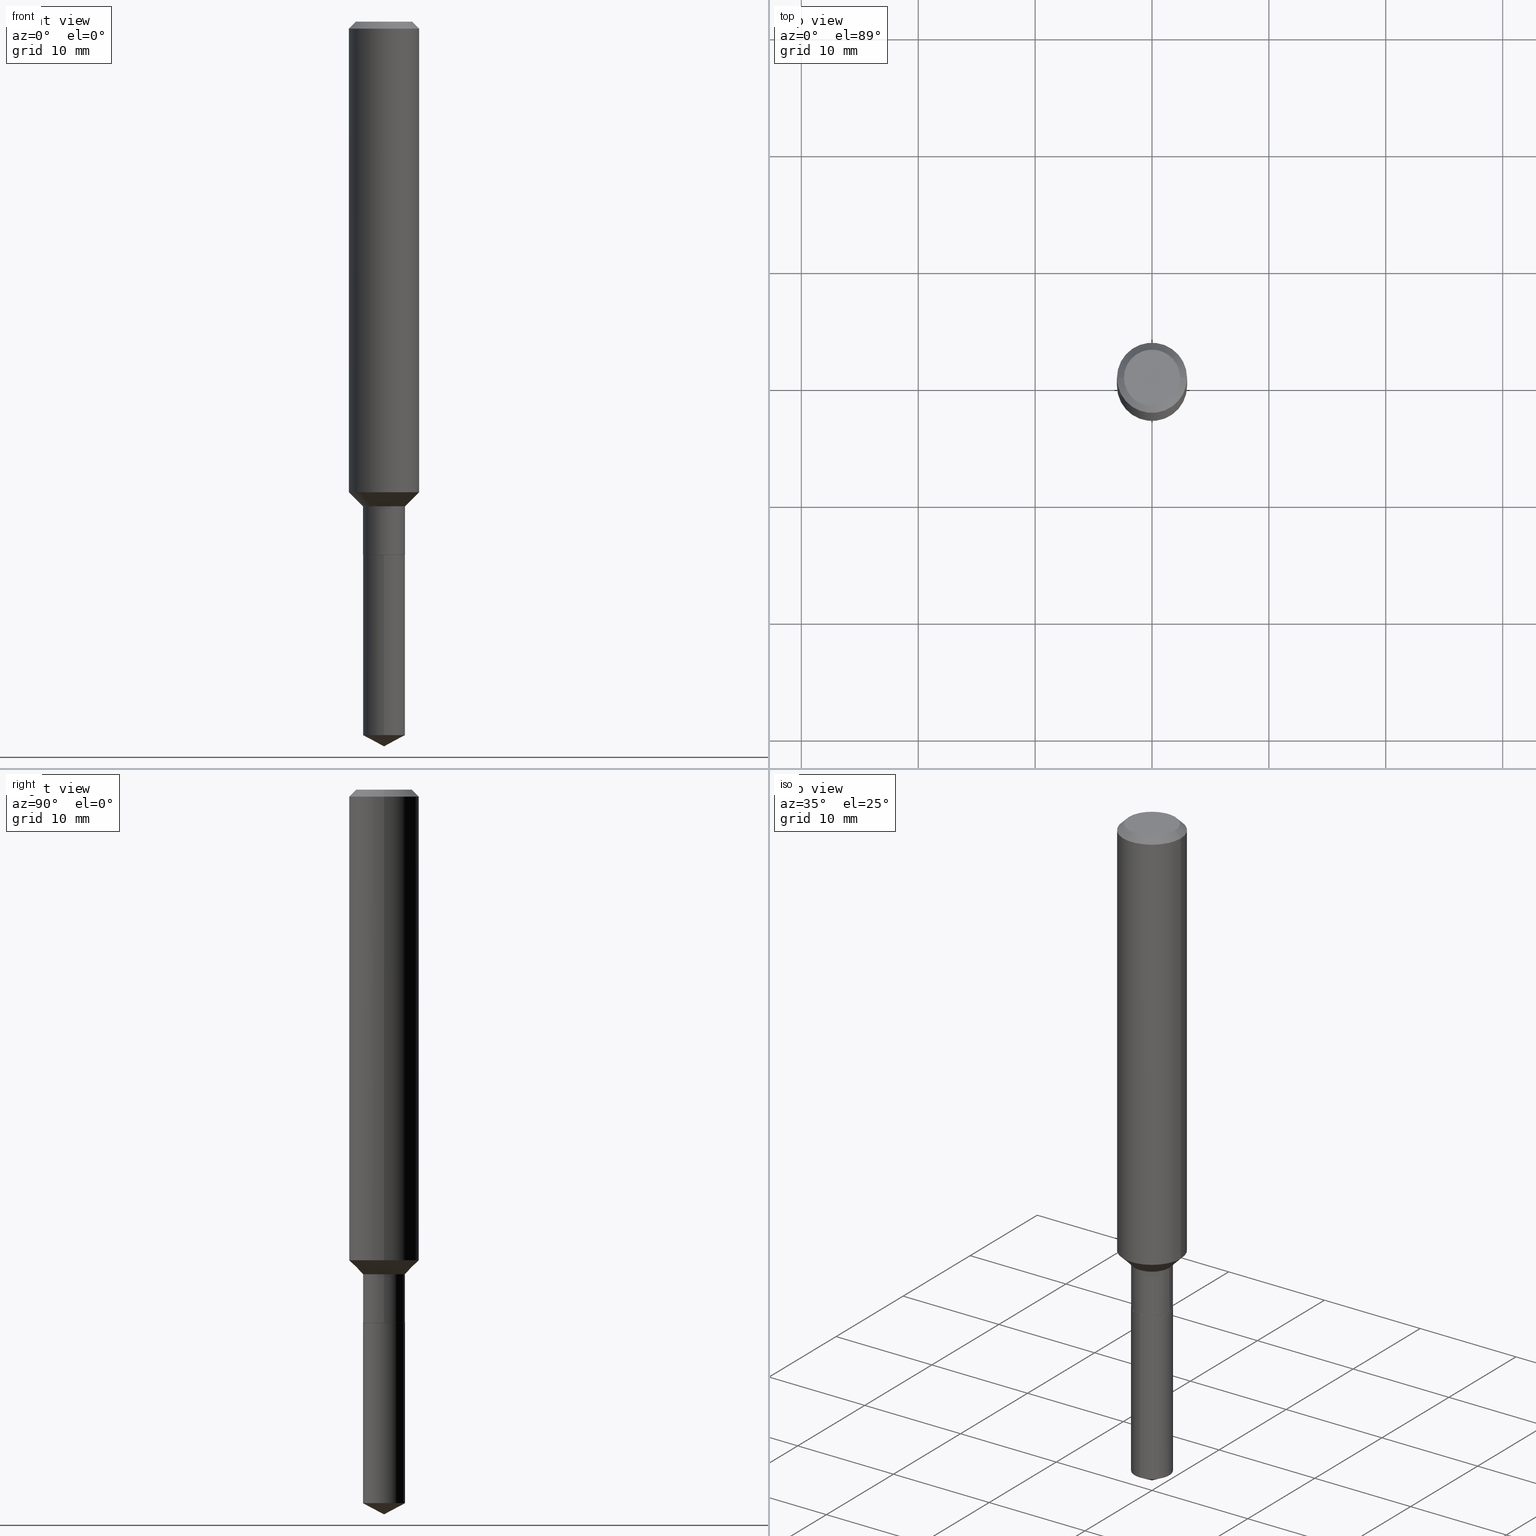
[diagram: canonical four-view strip — front | top / right | iso, engineering-drawing reading convention]
A machine part, canonical four-view strip (front | top / right | iso — engineering-drawing reading convention). The complete STEP part file that produces these views, byte-faithful:
ISO-10303-21;
HEADER;
FILE_DESCRIPTION (( 'STEP AP203' ),
    '1' );
FILE_NAME ('67606.STEP',
    '2024-04-25T07:02:37',
    ( '' ),
    ( '' ),
    'SwSTEP 2.0',
    'SolidWorks 2023',
    '' );
FILE_SCHEMA (( 'CONFIG_CONTROL_DESIGN' ));
ENDSEC;

DATA;
#1 = VECTOR ( 'NONE', #182, 39.37007874015748143 ) ;
#2 = DIRECTION ( 'NONE',  ( 2.434622913591768553E-29, -3.507013274346718220E-15, -1.000000000000000000 ) ) ;
#3 = PERSON_AND_ORGANIZATION ( #240, #260 ) ;
#4 = EDGE_LOOP ( 'NONE', ( #315, #353 ) ) ;
#5 = DIRECTION ( 'NONE',  ( 1.000000000000000000, -6.982962677686266711E-15, 0.000000000000000000 ) ) ;
#6 = ORIENTED_EDGE ( 'NONE', *, *, #435, .T. ) ;
#7 = CARTESIAN_POINT ( 'NONE',  ( 3.991494185455378715E-29, -5.698795841259781075E-15, -1.632199999999999651 ) ) ;
#8 = CARTESIAN_POINT ( 'NONE',  ( 0.07084999999999998244, -4.947429057140718608E-16, 3.454771245651419209E-30 ) ) ;
#9 = AXIS2_PLACEMENT_3D ( 'NONE', #406, #355, #89 ) ;
#10 = DIRECTION ( 'NONE',  ( -2.445468806185136597E-29, 3.491481338843145583E-15, 1.000000000000000000 ) ) ;
#11 = LOCAL_TIME ( 3, 2, 37.00000000000000000, #265 ) ;
#12 = DIRECTION ( 'NONE',  ( -6.982962677686265922E-15, -1.000000000000000000, 3.541896320645551402E-15 ) ) ;
#13 = AXIS2_PLACEMENT_3D ( 'NONE', #243, #395, #433 ) ;
#14 = CC_DESIGN_SECURITY_CLASSIFICATION ( #234, ( #233 ) ) ;
#15 = EDGE_LOOP ( 'NONE', ( #171, #168, #185, #404 ) ) ;
#16 = APPLICATION_CONTEXT ( 'configuration controlled 3d designs of mechanical parts and assemblies' ) ;
#17 = ORIENTED_EDGE ( 'NONE', *, *, #462, .T. ) ;
#18 = APPROVAL_DATE_TIME ( #434, #116 ) ;
#19 = ADVANCED_FACE ( 'NONE', ( #298 ), #322, .T. ) ;
#20 = DIRECTION ( 'NONE',  ( 1.000000000000000000, -6.982962677686269866E-15, 0.000000000000000000 ) ) ;
#21 = ORIENTED_EDGE ( 'NONE', *, *, #384, .F. ) ;
#22 = AXIS2_PLACEMENT_3D ( 'NONE', #229, #379, #33 ) ;
#23 = CARTESIAN_POINT ( 'NONE',  ( 5.034195282860748359E-16, 0.07084999999999373743, -1.795200000000000129 ) ) ;
#24 = ORIENTED_EDGE ( 'NONE', *, *, #352, .F. ) ;
#25 = ORIENTED_EDGE ( 'NONE', *, *, #75, .T. ) ;
#26 = ORIENTED_EDGE ( 'NONE', *, *, #389, .T. ) ;
#27 = EDGE_CURVE ( 'NONE', #310, #119, #408, .T. ) ;
#28 = APPROVAL_ROLE ( '' ) ;
#29 = VECTOR ( 'NONE', #410, 39.37007874015748143 ) ;
#30 = ORIENTED_EDGE ( 'NONE', *, *, #163, .F. ) ;
#31 = LINE ( 'NONE', #264, #29 ) ;
#32 = EDGE_CURVE ( 'NONE', #65, #373, #286, .T. ) ;
#33 = DIRECTION ( 'NONE',  ( 1.000000000000000000, -6.982962677686267499E-15, 4.875432709231658792E-29 ) ) ;
#34 = ORIENTED_EDGE ( 'NONE', *, *, #352, .T. ) ;
#35 = APPROVAL_PERSON_ORGANIZATION ( #342, #95, #154 ) ;
#36 = ORIENTED_EDGE ( 'NONE', *, *, #302, .F. ) ;
#37 = CARTESIAN_POINT ( 'NONE',  ( 5.776197320209326656E-31, -8.246878922347558061E-17, -0.02362000000000013741 ) ) ;
#38 = EDGE_LOOP ( 'NONE', ( #317, #190 ) ) ;
#39 = ORIENTED_EDGE ( 'NONE', *, *, #374, .F. ) ;
#40 = LINE ( 'NONE', #385, #388 ) ;
#41 = EDGE_CURVE ( 'NONE', #420, #106, #340, .T. ) ;
#42 = CARTESIAN_POINT ( 'NONE',  ( -0.07084999999999998244, 5.034195282860308569E-16, -3.485065511445599567E-30 ) ) ;
#43 = ORIENTED_EDGE ( 'NONE', *, *, #27, .F. ) ;
#44 = ORIENTED_EDGE ( 'NONE', *, *, #345, .T. ) ;
#45 = AXIS2_PLACEMENT_3D ( 'NONE', #7, #197, #160 ) ;
#46 = DIRECTION ( 'NONE',  ( -6.982962677686266711E-15, -1.000000000000000000, 3.855819327684210983E-15 ) ) ;
#47 = CIRCLE ( 'NONE', #332, 0.1181000000000001909 ) ;
#48 = DIRECTION ( 'NONE',  ( -6.982962677686266711E-15, -1.000000000000000000, 3.855819327684210983E-15 ) ) ;
#49 = DESIGN_CONTEXT ( 'detailed design', #16, 'design' ) ;
#50 = DIRECTION ( 'NONE',  ( 1.000000000000000000, -6.982962677686265922E-15, 4.876176775795935793E-29 ) ) ;
#51 = CARTESIAN_POINT ( 'NONE',  ( 0.07034999999999999587, -6.759158723866442575E-15, -1.795199999999999685 ) ) ;
#52 = CARTESIAN_POINT ( 'NONE',  ( 0.000000000000000000, 0.000000000000000000, 0.000000000000000000 ) ) ;
#53 = COORDINATED_UNIVERSAL_TIME_OFFSET ( 5, 0, .BEHIND. ) ;
#54 = AXIS2_PLACEMENT_3D ( 'NONE', #441, #414, #101 ) ;
#55 = CIRCLE ( 'NONE', #312, 0.07034999999999999587 ) ;
#56 = CARTESIAN_POINT ( 'NONE',  ( -8.988915419452979728E-28, 1.295390029830709242E-13, 36.92917874015748225 ) ) ;
#57 = ORIENTED_EDGE ( 'NONE', *, *, #389, .F. ) ;
#58 = ADVANCED_FACE ( 'NONE', ( #291 ), #81, .T. ) ;
#59 = PERSON_AND_ORGANIZATION ( #240, #260 ) ;
#60 = CALENDAR_DATE ( 2024, 25, 4 ) ;
#61 = CARTESIAN_POINT ( 'NONE',  ( 3.991494185455378715E-29, -5.698795841259781075E-15, -1.632199999999999651 ) ) ;
#62 = CALENDAR_DATE ( 2024, 25, 4 ) ;
#63 = CIRCLE ( 'NONE', #444, 0.07084999999999998244 ) ;
#64 = CIRCLE ( 'NONE', #478, 0.07084999999999998244 ) ;
#65 = VERTEX_POINT ( 'NONE', #266 ) ;
#66 = EDGE_LOOP ( 'NONE', ( #350, #88, #113, #457 ) ) ;
#67 = EDGE_CURVE ( 'NONE', #373, #82, #31, .T. ) ;
#68 = CARTESIAN_POINT ( 'NONE',  ( 4.390105600863556886E-29, -6.267907299491213327E-15, -1.795199999999999685 ) ) ;
#69 = DIRECTION ( 'NONE',  ( -0.7071067811866138531, 7.493145998870593974E-15, 0.7071067811864811814 ) ) ;
#70 = DIRECTION ( 'NONE',  ( -6.982962677686265922E-15, -1.000000000000000000, 3.541896320645551402E-15 ) ) ;
#71 = ORIENTED_EDGE ( 'NONE', *, *, #41, .F. ) ;
#72 = VECTOR ( 'NONE', #69, 39.37007874015748143 ) ;
#73 = VECTOR ( 'NONE', #277, 39.37007874015748143 ) ;
#74 = ORIENTED_EDGE ( 'NONE', *, *, #67, .F. ) ;
#75 = EDGE_CURVE ( 'NONE', #193, #337, #362, .T. ) ;
#76 = DATE_AND_TIME ( #488, #381 ) ;
#77 = CARTESIAN_POINT ( 'NONE',  ( 0.000000000000000000, 0.000000000000000000, 0.000000000000000000 ) ) ;
#78 = DIRECTION ( 'NONE',  ( 2.438088387897960049E-29, -3.491481338843145188E-15, -1.000000000000000000 ) ) ;
#79 = DIRECTION ( 'NONE',  ( -1.000000000000000000, 6.982962677686266711E-15, 0.000000000000000000 ) ) ;
#80 = ORIENTED_EDGE ( 'NONE', *, *, #230, .F. ) ;
#81 = CONICAL_SURFACE ( 'NONE', #294, 0.07034999999999999587, 0.7853981633975420928 ) ;
#82 = VERTEX_POINT ( 'NONE', #487 ) ;
#83 = AXIS2_PLACEMENT_3D ( 'NONE', #77, #346, #489 ) ;
#84 = FACE_OUTER_BOUND ( 'NONE', #196, .T. ) ;
#85 = EDGE_CURVE ( 'NONE', #164, #326, #477, .T. ) ;
#86 = CARTESIAN_POINT ( 'NONE',  ( -4.947429057140280790E-16, -0.07085000000000626907, -1.795199999999999463 ) ) ;
#87 = ORIENTED_EDGE ( 'NONE', *, *, #270, .F. ) ;
#88 = ORIENTED_EDGE ( 'NONE', *, *, #129, .T. ) ;
#89 = DIRECTION ( 'NONE',  ( -6.982962677686266711E-15, -1.000000000000000000, 3.855819327684210194E-15 ) ) ;
#90 = AXIS2_PLACEMENT_3D ( 'NONE', #484, #376, #262 ) ;
#91 = CYLINDRICAL_SURFACE ( 'NONE', #273, 0.07084999999999998244 ) ;
#92 =( GEOMETRIC_REPRESENTATION_CONTEXT ( 3 ) GLOBAL_UNCERTAINTY_ASSIGNED_CONTEXT ( ( #253 ) ) GLOBAL_UNIT_ASSIGNED_CONTEXT ( ( #401, #361, #211 ) ) REPRESENTATION_CONTEXT ( 'NONE', 'WORKASPACE' ) );
#93 = CARTESIAN_POINT ( 'NONE',  ( 4.390105600863556886E-29, -6.267907299491213327E-15, -1.795199999999999685 ) ) ;
#94 = DIRECTION ( 'NONE',  ( -2.445468806185136877E-29, 3.491481338843145188E-15, 1.000000000000000000 ) ) ;
#95 = APPROVAL ( #110, 'UNSPECIFIED' ) ;
#96 = DIRECTION ( 'NONE',  ( 1.000000000000000000, -6.982962677686269866E-15, 0.000000000000000000 ) ) ;
#97 = DATE_TIME_ROLE ( 'classification_date' ) ;
#98 = CONICAL_SURFACE ( 'NONE', #341, 0.1180999999999999966, 0.7853981633974461696 ) ;
#99 = VECTOR ( 'NONE', #279, 39.37007874015748143 ) ;
#100 = LINE ( 'NONE', #366, #1 ) ;
#101 = DIRECTION ( 'NONE',  ( 1.000000000000000000, -6.982962677686266711E-15, 0.000000000000000000 ) ) ;
#102 = PERSON_AND_ORGANIZATION_ROLE ( 'design_supplier' ) ;
#103 = DIRECTION ( 'NONE',  ( -2.445468806185136597E-29, 3.491481338843145583E-15, 1.000000000000000000 ) ) ;
#104 = CIRCLE ( 'NONE', #280, 0.1181000000000001909 ) ;
#105 = ORIENTED_EDGE ( 'NONE', *, *, #145, .F. ) ;
#106 = VERTEX_POINT ( 'NONE', #300 ) ;
#107 = APPLICATION_PROTOCOL_DEFINITION ( 'international standard', 'config_control_design', 1994, #16 ) ;
#108 = CARTESIAN_POINT ( 'NONE',  ( 0.1180999999999999966, -9.071566814582237199E-16, -0.02362000000000013741 ) ) ;
#109 = ORIENTED_EDGE ( 'NONE', *, *, #129, .F. ) ;
#110 = APPROVAL_STATUS ( 'not_yet_approved' ) ;
#111 = CARTESIAN_POINT ( 'NONE',  ( -8.988915419452979728E-28, 1.295390029830709242E-13, 36.92917874015748225 ) ) ;
#112 = ADVANCED_FACE ( 'NONE', ( #259 ), #226, .T. ) ;
#113 = ORIENTED_EDGE ( 'NONE', *, *, #145, .T. ) ;
#114 = VECTOR ( 'NONE', #269, 39.37007874015748143 ) ;
#115 = PLANE ( 'NONE',  #429 ) ;
#116 = APPROVAL ( #344, 'UNSPECIFIED' ) ;
#117 = APPROVAL_DATE_TIME ( #76, #95 ) ;
#118 = ORIENTED_EDGE ( 'NONE', *, *, #462, .F. ) ;
#119 = VERTEX_POINT ( 'NONE', #370 ) ;
#120 = FACE_OUTER_BOUND ( 'NONE', #417, .T. ) ;
#121 = DIRECTION ( 'NONE',  ( -2.434622913591768553E-29, 3.507013274346718220E-15, 1.000000000000000000 ) ) ;
#122 = EDGE_CURVE ( 'NONE', #313, #256, #144, .T. ) ;
#123 = ORIENTED_EDGE ( 'NONE', *, *, #302, .T. ) ;
#124 = AXIS2_PLACEMENT_3D ( 'NONE', #252, #283, #245 ) ;
#125 = DIRECTION ( 'NONE',  ( 1.000000000000000000, -6.982962677686269077E-15, 0.000000000000000000 ) ) ;
#126 = ORIENTED_EDGE ( 'NONE', *, *, #328, .T. ) ;
#127 = DIRECTION ( 'NONE',  ( -6.982962677686265133E-15, -1.000000000000000000, 3.855819327684210983E-15 ) ) ;
#128 = CARTESIAN_POINT ( 'NONE',  ( 4.390105600863556886E-29, -6.267907299491213327E-15, -1.795199999999999685 ) ) ;
#129 = EDGE_CURVE ( 'NONE', #106, #364, #411, .T. ) ;
#130 = CYLINDRICAL_SURFACE ( 'NONE', #83, 0.07084999999999998244 ) ;
#131 = ORIENTED_EDGE ( 'NONE', *, *, #270, .T. ) ;
#132 = DIRECTION ( 'NONE',  ( -2.434622913591768553E-29, 3.507013274346718220E-15, 1.000000000000000000 ) ) ;
#133 = AXIS2_PLACEMENT_3D ( 'NONE', #146, #289, #218 ) ;
#134 = DIRECTION ( 'NONE',  ( -6.165590087286837607E-15, -0.8829475928589268774, 0.4694715627858909723 ) ) ;
#135 = FACE_OUTER_BOUND ( 'NONE', #427, .T. ) ;
#136 = ORIENTED_EDGE ( 'NONE', *, *, #374, .T. ) ;
#137 = ADVANCED_FACE ( 'NONE', ( #84 ), #469, .T. ) ;
#138 = CARTESIAN_POINT ( 'NONE',  ( 4.390105600863556886E-29, -6.267907299491213327E-15, -1.795199999999999685 ) ) ;
#139 = AXIS2_PLACEMENT_3D ( 'NONE', #61, #367, #183 ) ;
#140 = ORIENTED_EDGE ( 'NONE', *, *, #473, .T. ) ;
#141 = CIRCLE ( 'NONE', #22, 0.09447999999999998066 ) ;
#142 = CARTESIAN_POINT ( 'NONE',  ( 3.991494185455378715E-29, -5.698795841259781075E-15, -1.632199999999999651 ) ) ;
#143 = CARTESIAN_POINT ( 'NONE',  ( 4.388882866460464645E-29, -6.266161558821792612E-15, -1.794699999999999740 ) ) ;
#144 = LINE ( 'NONE', #292, #247 ) ;
#145 = EDGE_CURVE ( 'NONE', #364, #326, #191, .T. ) ;
#146 = CARTESIAN_POINT ( 'NONE',  ( 0.000000000000000000, 0.000000000000000000, 0.000000000000000000 ) ) ;
#147 = ORIENTED_EDGE ( 'NONE', *, *, #263, .T. ) ;
#148 = CC_DESIGN_PERSON_AND_ORGANIZATION_ASSIGNMENT ( #59, #327, ( #234 ) ) ;
#149 = AXIS2_PLACEMENT_3D ( 'NONE', #309, #459, #46 ) ;
#150 = APPROVAL_PERSON_ORGANIZATION ( #222, #116, #28 ) ;
#151 = LINE ( 'NONE', #23, #249 ) ;
#152 = ORIENTED_EDGE ( 'NONE', *, *, #214, .F. ) ;
#153 = DIMENSIONAL_EXPONENTS ( 1.000000000000000000, 0.000000000000000000, 0.000000000000000000, 0.000000000000000000, 0.000000000000000000, 0.000000000000000000, 0.000000000000000000 ) ;
#154 = APPROVAL_ROLE ( '' ) ;
#155 = DIRECTION ( 'NONE',  ( -6.982962677686265133E-15, -1.000000000000000000, 3.855819327684210983E-15 ) ) ;
#156 = DIRECTION ( 'NONE',  ( -2.445468806185136597E-29, 3.491481338843145583E-15, 1.000000000000000000 ) ) ;
#157 = DIRECTION ( 'NONE',  ( -6.982962677686266711E-15, -1.000000000000000000, 3.855819327684210194E-15 ) ) ;
#158 = AXIS2_PLACEMENT_3D ( 'NONE', #455, #2, #308 ) ;
#159 = CONICAL_SURFACE ( 'NONE', #421, 0.07034999999999999587, 0.7853981633975420928 ) ;
#160 = DIRECTION ( 'NONE',  ( 1.000000000000000000, -6.982962677686265133E-15, 0.000000000000000000 ) ) ;
#161 = EDGE_LOOP ( 'NONE', ( #307, #126, #21, #105 ) ) ;
#162 = CYLINDRICAL_SURFACE ( 'NONE', #149, 0.07084999999999999631 ) ;
#163 = EDGE_CURVE ( 'NONE', #256, #119, #63, .T. ) ;
#164 = VERTEX_POINT ( 'NONE', #235 ) ;
#165 = DIRECTION ( 'NONE',  ( -0.7071067811865479058, 7.493145998870355738E-15, 0.7071067811865471286 ) ) ;
#166 = VECTOR ( 'NONE', #220, 39.37007874015748854 ) ;
#167 = VECTOR ( 'NONE', #134, 39.37007874015748854 ) ;
#168 = ORIENTED_EDGE ( 'NONE', *, *, #369, .T. ) ;
#169 = FACE_OUTER_BOUND ( 'NONE', #4, .T. ) ;
#170 = EDGE_CURVE ( 'NONE', #65, #354, #40, .T. ) ;
#171 = ORIENTED_EDGE ( 'NONE', *, *, #435, .F. ) ;
#172 = DIRECTION ( 'NONE',  ( -2.434622913591768553E-29, 3.507013274346718220E-15, 1.000000000000000000 ) ) ;
#173 = CC_DESIGN_PERSON_AND_ORGANIZATION_ASSIGNMENT ( #3, #453, ( #359 ) ) ;
#174 = CARTESIAN_POINT ( 'NONE',  ( -0.1181000000000001077, 8.391509709326790846E-16, -5.809262341591049389E-30 ) ) ;
#175 = CARTESIAN_POINT ( 'NONE',  ( 4.390105600863556886E-29, -6.267907299491213327E-15, -1.795199999999999685 ) ) ;
#176 = CC_DESIGN_APPROVAL ( #95, ( #359 ) ) ;
#177 = PERSON_AND_ORGANIZATION ( #240, #260 ) ;
#178 = EDGE_CURVE ( 'NONE', #337, #193, #180, .T. ) ;
#179 = ORIENTED_EDGE ( 'NONE', *, *, #122, .F. ) ;
#180 = CIRCLE ( 'NONE', #454, 0.1180999999999999966 ) ;
#181 = DATE_AND_TIME ( #60, #314 ) ;
#182 = DIRECTION ( 'NONE',  ( -2.445468806185136877E-29, 3.491481338843145188E-15, 1.000000000000000000 ) ) ;
#183 = DIRECTION ( 'NONE',  ( 1.000000000000000000, -6.982962677686265133E-15, 0.000000000000000000 ) ) ;
#184 = ORIENTED_EDGE ( 'NONE', *, *, #214, .T. ) ;
#185 = ORIENTED_EDGE ( 'NONE', *, *, #442, .T. ) ;
#186 = ORIENTED_EDGE ( 'NONE', *, *, #178, .F. ) ;
#187 = ADVANCED_FACE ( 'NONE', ( #169 ), #316, .F. ) ;
#188 = CARTESIAN_POINT ( 'NONE',  ( 3.875945784363130836E-29, -5.533823347999441494E-15, -1.584949999999999415 ) ) ;
#189 = ORIENTED_EDGE ( 'NONE', *, *, #75, .F. ) ;
#190 = ORIENTED_EDGE ( 'NONE', *, *, #263, .F. ) ;
#191 = LINE ( 'NONE', #86, #114 ) ;
#192 = AXIS2_PLACEMENT_3D ( 'NONE', #142, #103, #221 ) ;
#193 = VERTEX_POINT ( 'NONE', #463 ) ;
#194 = ADVANCED_FACE ( 'NONE', ( #195 ), #162, .T. ) ;
#195 = FACE_OUTER_BOUND ( 'NONE', #66, .T. ) ;
#196 = EDGE_LOOP ( 'NONE', ( #131, #375, #57, #74 ) ) ;
#197 = DIRECTION ( 'NONE',  ( -2.445468806185136597E-29, 3.491481338843145583E-15, 1.000000000000000000 ) ) ;
#198 = EDGE_CURVE ( 'NONE', #364, #106, #258, .T. ) ;
#199 = AXIS2_PLACEMENT_3D ( 'NONE', #470, #172, #127 ) ;
#200 = ORIENTED_EDGE ( 'NONE', *, *, #27, .T. ) ;
#201 = CARTESIAN_POINT ( 'NONE',  ( 5.870425443400208317E-29, -8.400270923061947192E-15, -2.403228386766784297 ) ) ;
#202 = CARTESIAN_POINT ( 'NONE',  ( 0.09447999999999998066, -7.704367267948738690E-16, -1.928573779296752193E-17 ) ) ;
#203 = LINE ( 'NONE', #430, #167 ) ;
#204 = DIRECTION ( 'NONE',  ( -2.445468806185136597E-29, 3.491481338843145583E-15, 1.000000000000000000 ) ) ;
#205 = PERSON_AND_ORGANIZATION_ROLE ( 'creator' ) ;
#206 =( LENGTH_UNIT ( ) NAMED_UNIT ( * ) SI_UNIT ( $, .METRE. ) );
#207 = AXIS2_PLACEMENT_3D ( 'NONE', #201, #121, #157 ) ;
#208 = ADVANCED_FACE ( 'NONE', ( #303 ), #115, .F. ) ;
#209 = AXIS2_PLACEMENT_3D ( 'NONE', #93, #393, #50 ) ;
#210 = CC_DESIGN_PERSON_AND_ORGANIZATION_ASSIGNMENT ( #246, #205, ( #233 ) ) ;
#211 =( NAMED_UNIT ( * ) SI_UNIT ( $, .STERADIAN. ) SOLID_ANGLE_UNIT ( ) );
#212 = PRODUCT ( '67606', '67606', '', ( #331 ) ) ;
#213 = COORDINATED_UNIVERSAL_TIME_OFFSET ( 5, 0, .BEHIND. ) ;
#214 = EDGE_CURVE ( 'NONE', #368, #295, #141, .T. ) ;
#215 = ORIENTED_EDGE ( 'NONE', *, *, #442, .F. ) ;
#216 = VECTOR ( 'NONE', #94, 39.37007874015748143 ) ;
#217 = CC_DESIGN_APPROVAL ( #116, ( #233 ) ) ;
#218 = DIRECTION ( 'NONE',  ( 1.000000000000000000, 0.000000000000000000, 0.000000000000000000 ) ) ;
#219 = ORIENTED_EDGE ( 'NONE', *, *, #67, .T. ) ;
#220 = DIRECTION ( 'NONE',  ( 6.273719981627770021E-15, 0.8829475928589300970, 0.4694715627858847551 ) ) ;
#221 = DIRECTION ( 'NONE',  ( 1.000000000000000000, -6.982962677686265133E-15, 0.000000000000000000 ) ) ;
#222 = PERSON_AND_ORGANIZATION ( #240, #260 ) ;
#223 = DIRECTION ( 'NONE',  ( -2.434622913591768553E-29, 3.507013274346718220E-15, 1.000000000000000000 ) ) ;
#224 = ORIENTED_EDGE ( 'NONE', *, *, #163, .T. ) ;
#225 = ADVANCED_FACE ( 'NONE', ( #120 ), #98, .T. ) ;
#226 = CONICAL_SURFACE ( 'NONE', #139, 0.07084999999999998244, 0.7853981633974488341 ) ;
#227 = DIRECTION ( 'NONE',  ( -2.445468806185136597E-29, 3.491481338843145583E-15, 1.000000000000000000 ) ) ;
#228 = EDGE_LOOP ( 'NONE', ( #118, #480, #371 ) ) ;
#229 = CARTESIAN_POINT ( 'NONE',  ( 4.716267017698007905E-46, -6.733579360998555036E-32, -1.928573779297252010E-17 ) ) ;
#230 = EDGE_CURVE ( 'NONE', #295, #337, #232, .T. ) ;
#231 = ORIENTED_EDGE ( 'NONE', *, *, #236, .F. ) ;
#232 = LINE ( 'NONE', #471, #311 ) ;
#233 = PRODUCT_DEFINITION_FORMATION_WITH_SPECIFIED_SOURCE ( 'ANY', '', #212, .NOT_KNOWN. ) ;
#234 = SECURITY_CLASSIFICATION ( '', '', #396 ) ;
#235 = CARTESIAN_POINT ( 'NONE',  ( 5.034195282860897256E-16, 0.07084999999999372355, -1.795200000000000129 ) ) ;
#236 = EDGE_CURVE ( 'NONE', #295, #368, #305, .T. ) ;
#237 = EDGE_LOOP ( 'NONE', ( #231, #407, #335, #39 ) ) ;
#238 = DIRECTION ( 'NONE',  ( -2.445468806185136597E-29, 3.491481338843145583E-15, 1.000000000000000000 ) ) ;
#239 = CONICAL_SURFACE ( 'NONE', #413, 74.04434902938373853, 1.082104136236487602 ) ;
#240 = PERSON ( 'UNSPECIFIED', 'UNSPECIFIED', 'UNSPECIFIED', ('UNSPECIFIED'), ('UNSPECIFIED'), ('UNSPECIFIED') ) ;
#241 = CARTESIAN_POINT ( 'NONE',  ( 0.000000000000000000, 0.000000000000000000, 0.000000000000000000 ) ) ;
#242 = LINE ( 'NONE', #415, #372 ) ;
#243 = CARTESIAN_POINT ( 'NONE',  ( 4.716267017698007905E-46, -6.733579360998555036E-32, -1.928573779297252010E-17 ) ) ;
#244 = ADVANCED_FACE ( 'NONE', ( #318 ), #320, .T. ) ;
#245 = DIRECTION ( 'NONE',  ( 1.000000000000000000, -6.982962677686265133E-15, 0.000000000000000000 ) ) ;
#246 = PERSON_AND_ORGANIZATION ( #240, #260 ) ;
#247 = VECTOR ( 'NONE', #443, 39.37007874015748143 ) ;
#248 = LINE ( 'NONE', #174, #216 ) ;
#249 = VECTOR ( 'NONE', #223, 39.37007874015748143 ) ;
#250 = EDGE_LOOP ( 'NONE', ( #71, #17, #109 ) ) ;
#251 = APPLICATION_CONTEXT ( 'configuration controlled 3d designs of mechanical parts and assemblies' ) ;
#252 = CARTESIAN_POINT ( 'NONE',  ( 3.991494185455378715E-29, -5.698795841259781075E-15, -1.632199999999999651 ) ) ;
#253 = UNCERTAINTY_MEASURE_WITH_UNIT (LENGTH_MEASURE( 1.000000000000000082E-05 ), #401, 'distance_accuracy_value', 'NONE');
#254 = ADVANCED_FACE ( 'NONE', ( #135 ), #330, .T. ) ;
#255 = CALENDAR_DATE ( 2024, 25, 4 ) ;
#256 = VERTEX_POINT ( 'NONE', #467 ) ;
#257 = CARTESIAN_POINT ( 'NONE',  ( 4.390105600863556886E-29, -6.267907299491213327E-15, -1.795199999999999685 ) ) ;
#258 = CIRCLE ( 'NONE', #207, 0.07085000000000001019 ) ;
#259 = FACE_OUTER_BOUND ( 'NONE', #349, .T. ) ;
#260 = ORGANIZATION ( 'UNSPECIFIED', 'UNSPECIFIED', '' ) ;
#261 = DATE_AND_TIME ( #451, #445 ) ;
#262 = DIRECTION ( 'NONE',  ( -1.000000000000000000, 6.982962677686266711E-15, 0.000000000000000000 ) ) ;
#263 = EDGE_CURVE ( 'NONE', #310, #313, #323, .T. ) ;
#264 = CARTESIAN_POINT ( 'NONE',  ( 0.07084999999999998244, -6.193538746973852542E-15, -1.632199999999999651 ) ) ;
#265 = COORDINATED_UNIVERSAL_TIME_OFFSET ( 5, 0, .BEHIND. ) ;
#266 = CARTESIAN_POINT ( 'NONE',  ( -0.07084999999999998244, -5.479059171754755297E-15, -1.632199999999999651 ) ) ;
#267 = AXIS2_PLACEMENT_3D ( 'NONE', #111, #449, #70 ) ;
#268 = DIRECTION ( 'NONE',  ( 1.000000000000000000, -6.982962677686269077E-15, 0.000000000000000000 ) ) ;
#269 = DIRECTION ( 'NONE',  ( -2.434622913591768553E-29, 3.507013274346718220E-15, 1.000000000000000000 ) ) ;
#270 = EDGE_CURVE ( 'NONE', #373, #65, #363, .T. ) ;
#271 = CARTESIAN_POINT ( 'NONE',  ( 5.776197320209326656E-31, -8.246878922347558061E-17, -0.02362000000000013741 ) ) ;
#272 = PRODUCT_RELATED_PRODUCT_CATEGORY ( 'detail', '', ( #212 ) ) ;
#273 = AXIS2_PLACEMENT_3D ( 'NONE', #241, #474, #392 ) ;
#274 = EDGE_LOOP ( 'NONE', ( #26, #123, #186, #24 ) ) ;
#275 = PLANE ( 'NONE',  #209 ) ;
#276 = ADVANCED_FACE ( 'NONE', ( #278 ), #428, .T. ) ;
#277 = DIRECTION ( 'NONE',  ( -2.445468806185136877E-29, 3.491481338843145188E-15, 1.000000000000000000 ) ) ;
#278 = FACE_OUTER_BOUND ( 'NONE', #274, .T. ) ;
#279 = DIRECTION ( 'NONE',  ( -2.445468806185136877E-29, 3.491481338843145188E-15, 1.000000000000000000 ) ) ;
#280 = AXIS2_PLACEMENT_3D ( 'NONE', #188, #156, #268 ) ;
#281 = DIRECTION ( 'NONE',  ( 1.000000000000000000, -6.982962677686266711E-15, 4.876176775795935793E-29 ) ) ;
#282 = ADVANCED_FACE ( 'NONE', ( #397 ), #159, .T. ) ;
#283 = DIRECTION ( 'NONE',  ( -2.445468806185136597E-29, 3.491481338843145583E-15, 1.000000000000000000 ) ) ;
#284 = MANIFOLD_SOLID_BREP ( 'Body-Move/Copy2[2]', #304 ) ;
#285 = DIRECTION ( 'NONE',  ( -2.434622913591768553E-29, 3.507013274346718220E-15, 1.000000000000000000 ) ) ;
#286 = CIRCLE ( 'NONE', #192, 0.07084999999999998244 ) ;
#287 = ADVANCED_FACE ( 'NONE', ( #439 ), #91, .T. ) ;
#288 = DIRECTION ( 'NONE',  ( 1.000000000000000000, -6.982962677686269866E-15, 0.000000000000000000 ) ) ;
#289 = DIRECTION ( 'NONE',  ( 0.000000000000000000, 0.000000000000000000, 1.000000000000000000 ) ) ;
#290 = CC_DESIGN_DATE_AND_TIME_ASSIGNMENT ( #261, #409, ( #359 ) ) ;
#291 = FACE_OUTER_BOUND ( 'NONE', #299, .T. ) ;
#292 = CARTESIAN_POINT ( 'NONE',  ( 0.07034999999999999587, -6.759158723866442575E-15, -1.795199999999999685 ) ) ;
#293 = PERSON_AND_ORGANIZATION_ROLE ( 'design_owner' ) ;
#294 = AXIS2_PLACEMENT_3D ( 'NONE', #343, #482, #450 ) ;
#295 = VERTEX_POINT ( 'NONE', #202 ) ;
#296 = AXIS2_PLACEMENT_3D ( 'NONE', #175, #132, #48 ) ;
#297 = ADVANCED_FACE ( 'NONE', ( #358 ), #239, .T. ) ;
#298 = FACE_OUTER_BOUND ( 'NONE', #237, .T. ) ;
#299 = EDGE_LOOP ( 'NONE', ( #43, #147, #425, #351 ) ) ;
#300 = CARTESIAN_POINT ( 'NONE',  ( 5.034195282860898242E-16, 0.07084999999999162801, -2.403228386766784297 ) ) ;
#301 = LINE ( 'NONE', #42, #73 ) ;
#302 = EDGE_CURVE ( 'NONE', #354, #193, #248, .T. ) ;
#303 = FACE_OUTER_BOUND ( 'NONE', #329, .T. ) ;
#304 = CLOSED_SHELL ( 'NONE', ( #282, #19, #276, #137, #419, #287, #112, #254, #225, #208, #486, #58 ) ) ;
#305 = CIRCLE ( 'NONE', #13, 0.09447999999999998066 ) ;
#306 = COORDINATED_UNIVERSAL_TIME_OFFSET ( 5, 0, .BEHIND. ) ;
#307 = ORIENTED_EDGE ( 'NONE', *, *, #198, .T. ) ;
#308 = DIRECTION ( 'NONE',  ( 6.982962677686265922E-15, 1.000000000000000000, -3.507013274346718220E-15 ) ) ;
#309 = CARTESIAN_POINT ( 'NONE',  ( 4.390105600863556886E-29, -6.267907299491213327E-15, -1.795199999999999685 ) ) ;
#310 = VERTEX_POINT ( 'NONE', #394 ) ;
#311 = VECTOR ( 'NONE', #431, 39.37007874015748143 ) ;
#312 = AXIS2_PLACEMENT_3D ( 'NONE', #68, #412, #20 ) ;
#313 = VERTEX_POINT ( 'NONE', #51 ) ;
#314 = LOCAL_TIME ( 3, 2, 37.00000000000000000, #53 ) ;
#315 = ORIENTED_EDGE ( 'NONE', *, *, #384, .T. ) ;
#316 = PLANE ( 'NONE',  #158 ) ;
#317 = ORIENTED_EDGE ( 'NONE', *, *, #345, .F. ) ;
#318 = FACE_OUTER_BOUND ( 'NONE', #161, .T. ) ;
#319 = DIRECTION ( 'NONE',  ( -0.7071067811865460184, 2.468850131082241283E-15, -0.7071067811865490160 ) ) ;
#320 = CYLINDRICAL_SURFACE ( 'NONE', #296, 0.07084999999999999631 ) ;
#321 = FACE_OUTER_BOUND ( 'NONE', #333, .T. ) ;
#322 = CONICAL_SURFACE ( 'NONE', #90, 0.1180999999999999966, 0.7853981633974461696 ) ;
#323 = CIRCLE ( 'NONE', #438, 0.07034999999999999587 ) ;
#324 = DIRECTION ( 'NONE',  ( -2.445468806185136597E-29, 3.491481338843145583E-15, 1.000000000000000000 ) ) ;
#325 = DIRECTION ( 'NONE',  ( -2.445468806185136597E-29, 3.491481338843145583E-15, 1.000000000000000000 ) ) ;
#326 = VERTEX_POINT ( 'NONE', #360 ) ;
#327 = PERSON_AND_ORGANIZATION_ROLE ( 'classification_officer' ) ;
#328 = EDGE_CURVE ( 'NONE', #106, #164, #151, .T. ) ;
#329 = EDGE_LOOP ( 'NONE', ( #184, #466 ) ) ;
#330 = CYLINDRICAL_SURFACE ( 'NONE', #460, 0.1181000000000001077 ) ;
#331 = MECHANICAL_CONTEXT ( 'NONE', #251, 'mechanical' ) ;
#332 = AXIS2_PLACEMENT_3D ( 'NONE', #461, #227, #125 ) ;
#333 = EDGE_LOOP ( 'NONE', ( #224, #6, #87, #215 ) ) ;
#334 = CARTESIAN_POINT ( 'NONE',  ( -4.947429057140133864E-16, -0.07085000000000843401, -2.403228386766783853 ) ) ;
#335 = ORIENTED_EDGE ( 'NONE', *, *, #178, .T. ) ;
#336 = CARTESIAN_POINT ( 'NONE',  ( -0.1181000000000001909, -4.694672377066761719E-15, -1.584949999999999415 ) ) ;
#337 = VERTEX_POINT ( 'NONE', #108 ) ;
#338 = ADVANCED_FACE ( 'NONE', ( #479 ), #356, .T. ) ;
#339 = CLOSED_SHELL ( 'NONE', ( #244, #338, #297, #194, #187 ) ) ;
#340 = LINE ( 'NONE', #485, #166 ) ;
#341 = AXIS2_PLACEMENT_3D ( 'NONE', #271, #418, #79 ) ;
#342 = PERSON_AND_ORGANIZATION ( #240, #260 ) ;
#343 = CARTESIAN_POINT ( 'NONE',  ( 4.390105600863556886E-29, -6.267907299491213327E-15, -1.795199999999999685 ) ) ;
#344 = APPROVAL_STATUS ( 'not_yet_approved' ) ;
#345 = EDGE_CURVE ( 'NONE', #313, #310, #55, .T. ) ;
#346 = DIRECTION ( 'NONE',  ( -2.445468806185136597E-29, 3.491481338843145583E-15, 1.000000000000000000 ) ) ;
#347 = CARTESIAN_POINT ( 'NONE',  ( -0.07034999999999999587, -5.768040484883983467E-15, -1.795199999999999685 ) ) ;
#348 = CC_DESIGN_DATE_AND_TIME_ASSIGNMENT ( #399, #97, ( #234 ) ) ;
#349 = EDGE_LOOP ( 'NONE', ( #423, #446, #219, #383 ) ) ;
#350 = ORIENTED_EDGE ( 'NONE', *, *, #328, .F. ) ;
#351 = ORIENTED_EDGE ( 'NONE', *, *, #369, .F. ) ;
#352 = EDGE_CURVE ( 'NONE', #82, #337, #100, .T. ) ;
#353 = ORIENTED_EDGE ( 'NONE', *, *, #85, .T. ) ;
#354 = VERTEX_POINT ( 'NONE', #336 ) ;
#355 = DIRECTION ( 'NONE',  ( -2.434622913591768553E-29, 3.507013274346718220E-15, 1.000000000000000000 ) ) ;
#356 = CONICAL_SURFACE ( 'NONE', #267, 74.04434902938373853, 1.082104136236487602 ) ;
#357 = DIRECTION ( 'NONE',  ( 1.000000000000000000, -6.982962677686266711E-15, 4.876176775795935793E-29 ) ) ;
#358 = FACE_OUTER_BOUND ( 'NONE', #250, .T. ) ;
#359 = PRODUCT_DEFINITION ( 'UNKNOWN', '', #233, #49 ) ;
#360 = CARTESIAN_POINT ( 'NONE',  ( -4.947429057140279804E-16, -0.07085000000000625520, -1.795199999999999463 ) ) ;
#361 =( NAMED_UNIT ( * ) PLANE_ANGLE_UNIT ( ) SI_UNIT ( $, .RADIAN. ) );
#362 = CIRCLE ( 'NONE', #54, 0.1180999999999999966 ) ;
#363 = CIRCLE ( 'NONE', #124, 0.07084999999999998244 ) ;
#364 = VERTEX_POINT ( 'NONE', #334 ) ;
#365 = PERSON_AND_ORGANIZATION ( #240, #260 ) ;
#366 = CARTESIAN_POINT ( 'NONE',  ( 0.1181000000000001077, -8.246878922347488542E-16, 5.758764772215005345E-30 ) ) ;
#367 = DIRECTION ( 'NONE',  ( -2.445468806185136597E-29, 3.491481338843145583E-15, 1.000000000000000000 ) ) ;
#368 = VERTEX_POINT ( 'NONE', #481 ) ;
#369 = EDGE_CURVE ( 'NONE', #119, #256, #64, .T. ) ;
#370 = CARTESIAN_POINT ( 'NONE',  ( -0.07084999999999999631, -5.479059171754755297E-15, -1.794699999999999740 ) ) ;
#371 = ORIENTED_EDGE ( 'NONE', *, *, #198, .F. ) ;
#372 = VECTOR ( 'NONE', #319, 39.37007874015748143 ) ;
#373 = VERTEX_POINT ( 'NONE', #391 ) ;
#374 = EDGE_CURVE ( 'NONE', #368, #193, #242, .T. ) ;
#375 = ORIENTED_EDGE ( 'NONE', *, *, #170, .T. ) ;
#376 = DIRECTION ( 'NONE',  ( 2.445468806185136597E-29, -3.491481338843145583E-15, -1.000000000000000000 ) ) ;
#377 = PERSON_AND_ORGANIZATION ( #240, #260 ) ;
#378 = LINE ( 'NONE', #8, #99 ) ;
#379 = DIRECTION ( 'NONE',  ( -2.445468806185136597E-29, 3.491481338843145583E-15, 1.000000000000000000 ) ) ;
#380 = COORDINATED_UNIVERSAL_TIME_OFFSET ( 5, 0, .BEHIND. ) ;
#381 = LOCAL_TIME ( 3, 2, 37.00000000000000000, #306 ) ;
#382 = LOCAL_TIME ( 3, 2, 37.00000000000000000, #213 ) ;
#383 = ORIENTED_EDGE ( 'NONE', *, *, #473, .F. ) ;
#384 = EDGE_CURVE ( 'NONE', #326, #164, #390, .T. ) ;
#385 = CARTESIAN_POINT ( 'NONE',  ( -0.07084999999999998244, -5.195376312973749528E-15, -1.632199999999999651 ) ) ;
#386 = APPROVAL ( #403, 'UNSPECIFIED' ) ;
#387 = FACE_OUTER_BOUND ( 'NONE', #38, .T. ) ;
#388 = VECTOR ( 'NONE', #165, 39.37007874015748143 ) ;
#389 = EDGE_CURVE ( 'NONE', #82, #354, #104, .T. ) ;
#390 = CIRCLE ( 'NONE', #199, 0.07084999999999999631 ) ;
#391 = CARTESIAN_POINT ( 'NONE',  ( 0.07084999999999998244, -6.193538746973852542E-15, -1.632199999999999651 ) ) ;
#392 = DIRECTION ( 'NONE',  ( 1.000000000000000000, -6.982962677686266711E-15, 4.876176775795935232E-29 ) ) ;
#393 = DIRECTION ( 'NONE',  ( -2.438088387897960049E-29, 3.491481338843145188E-15, 1.000000000000000000 ) ) ;
#394 = CARTESIAN_POINT ( 'NONE',  ( -0.07034999999999999587, -5.765391257709872266E-15, -1.795199999999999685 ) ) ;
#395 = DIRECTION ( 'NONE',  ( -2.445468806185136597E-29, 3.491481338843145583E-15, 1.000000000000000000 ) ) ;
#396 = SECURITY_CLASSIFICATION_LEVEL ( 'unclassified' ) ;
#397 = FACE_OUTER_BOUND ( 'NONE', #452, .T. ) ;
#398 = CC_DESIGN_PERSON_AND_ORGANIZATION_ASSIGNMENT ( #377, #293, ( #212 ) ) ;
#399 = DATE_AND_TIME ( #255, #382 ) ;
#400 = CC_DESIGN_PERSON_AND_ORGANIZATION_ASSIGNMENT ( #177, #102, ( #233 ) ) ;
#401 =( CONVERSION_BASED_UNIT ( 'INCH', #475 ) LENGTH_UNIT ( ) NAMED_UNIT ( #153 ) );
#402 = DIRECTION ( 'NONE',  ( -2.434622913591768553E-29, 3.507013274346718220E-15, 1.000000000000000000 ) ) ;
#403 = APPROVAL_STATUS ( 'not_yet_approved' ) ;
#404 = ORIENTED_EDGE ( 'NONE', *, *, #32, .F. ) ;
#405 = AXIS2_PLACEMENT_3D ( 'NONE', #468, #324, #281 ) ;
#406 = CARTESIAN_POINT ( 'NONE',  ( 5.870425443400208317E-29, -8.400270923061947192E-15, -2.403228386766784297 ) ) ;
#407 = ORIENTED_EDGE ( 'NONE', *, *, #230, .T. ) ;
#408 = LINE ( 'NONE', #347, #72 ) ;
#409 = DATE_TIME_ROLE ( 'creation_date' ) ;
#410 = DIRECTION ( 'NONE',  ( 0.7071067811865479058, -2.468850131082261005E-15, 0.7071067811865471286 ) ) ;
#411 = CIRCLE ( 'NONE', #9, 0.07085000000000001019 ) ;
#412 = DIRECTION ( 'NONE',  ( -2.445468806185136597E-29, 3.491481338843145583E-15, 1.000000000000000000 ) ) ;
#413 = AXIS2_PLACEMENT_3D ( 'NONE', #56, #285, #12 ) ;
#414 = DIRECTION ( 'NONE',  ( -2.445468806185136597E-29, 3.491481338843145583E-15, 1.000000000000000000 ) ) ;
#415 = CARTESIAN_POINT ( 'NONE',  ( -0.1180999999999999966, 7.422191030112725094E-16, -0.02362000000000013741 ) ) ;
#416 = CARTESIAN_POINT ( 'NONE',  ( 2.358133508849003952E-46, -3.366789680499277518E-32, -9.642868896486260050E-18 ) ) ;
#417 = EDGE_LOOP ( 'NONE', ( #80, #152, #136, #25 ) ) ;
#418 = DIRECTION ( 'NONE',  ( 2.445468806185136597E-29, -3.491481338843145583E-15, -1.000000000000000000 ) ) ;
#419 = ADVANCED_FACE ( 'NONE', ( #321 ), #130, .T. ) ;
#420 = VERTEX_POINT ( 'NONE', #464 ) ;
#421 = AXIS2_PLACEMENT_3D ( 'NONE', #138, #325, #288 ) ;
#422 = APPROVAL_PERSON_ORGANIZATION ( #365, #386, #436 ) ;
#423 = ORIENTED_EDGE ( 'NONE', *, *, #170, .F. ) ;
#424 = DIRECTION ( 'NONE',  ( 1.000000000000000000, -6.982962677686265133E-15, 0.000000000000000000 ) ) ;
#425 = ORIENTED_EDGE ( 'NONE', *, *, #122, .T. ) ;
#426 = DIRECTION ( 'NONE',  ( 1.000000000000000000, -6.982962677686265133E-15, 0.000000000000000000 ) ) ;
#427 = EDGE_LOOP ( 'NONE', ( #36, #140, #34, #189 ) ) ;
#428 = CYLINDRICAL_SURFACE ( 'NONE', #405, 0.1181000000000001077 ) ;
#429 = AXIS2_PLACEMENT_3D ( 'NONE', #416, #78, #458 ) ;
#430 = CARTESIAN_POINT ( 'NONE',  ( 5.942671069786146579E-29, -8.560268701352903551E-15, -2.440899999999999626 ) ) ;
#431 = DIRECTION ( 'NONE',  ( 0.7071067811865460184, -7.319954787623251312E-15, -0.7071067811865490160 ) ) ;
#432 = APPLICATION_PROTOCOL_DEFINITION ( 'international standard', 'config_control_design', 1994, #251 ) ;
#433 = DIRECTION ( 'NONE',  ( 1.000000000000000000, -6.982962677686267499E-15, 4.875432709231658792E-29 ) ) ;
#434 = DATE_AND_TIME ( #62, #11 ) ;
#435 = EDGE_CURVE ( 'NONE', #119, #65, #301, .T. ) ;
#436 = APPROVAL_ROLE ( '' ) ;
#437 = AXIS2_PLACEMENT_3D ( 'NONE', #257, #402, #155 ) ;
#438 = AXIS2_PLACEMENT_3D ( 'NONE', #128, #204, #96 ) ;
#439 = FACE_OUTER_BOUND ( 'NONE', #15, .T. ) ;
#440 = APPROVAL_DATE_TIME ( #181, #386 ) ;
#441 = CARTESIAN_POINT ( 'NONE',  ( 5.776197320209326656E-31, -8.246878922347558061E-17, -0.02362000000000013741 ) ) ;
#442 = EDGE_CURVE ( 'NONE', #256, #373, #378, .T. ) ;
#443 = DIRECTION ( 'NONE',  ( 0.7071067811866138531, -2.468850131082952047E-15, 0.7071067811864811814 ) ) ;
#444 = AXIS2_PLACEMENT_3D ( 'NONE', #490, #10, #426 ) ;
#445 = LOCAL_TIME ( 3, 2, 37.00000000000000000, #380 ) ;
#446 = ORIENTED_EDGE ( 'NONE', *, *, #32, .T. ) ;
#447 = ADVANCED_BREP_SHAPE_REPRESENTATION ( '67606', ( #448, #284, #133 ), #92 ) ;
#448 = MANIFOLD_SOLID_BREP ( 'Body-Move/Copy2[1]', #339 ) ;
#449 = DIRECTION ( 'NONE',  ( -2.434622913591768553E-29, 3.507013274346718220E-15, 1.000000000000000000 ) ) ;
#450 = DIRECTION ( 'NONE',  ( 1.000000000000000000, -6.982962677686269866E-15, 0.000000000000000000 ) ) ;
#451 = CALENDAR_DATE ( 2024, 25, 4 ) ;
#452 = EDGE_LOOP ( 'NONE', ( #44, #200, #30, #179 ) ) ;
#453 = PERSON_AND_ORGANIZATION_ROLE ( 'creator' ) ;
#454 = AXIS2_PLACEMENT_3D ( 'NONE', #37, #238, #5 ) ;
#455 = CARTESIAN_POINT ( 'NONE',  ( 4.390105600863556886E-29, -6.267907299491213327E-15, -1.795199999999999685 ) ) ;
#456 = CC_DESIGN_APPROVAL ( #386, ( #234 ) ) ;
#457 = ORIENTED_EDGE ( 'NONE', *, *, #85, .F. ) ;
#458 = DIRECTION ( 'NONE',  ( -1.000000000000000000, 6.982962677686265922E-15, -4.876176775795935793E-29 ) ) ;
#459 = DIRECTION ( 'NONE',  ( -2.434622913591768553E-29, 3.507013274346718220E-15, 1.000000000000000000 ) ) ;
#460 = AXIS2_PLACEMENT_3D ( 'NONE', #52, #476, #357 ) ;
#461 = CARTESIAN_POINT ( 'NONE',  ( 3.875945784363130836E-29, -5.533823347999441494E-15, -1.584949999999999415 ) ) ;
#462 = EDGE_CURVE ( 'NONE', #420, #364, #203, .T. ) ;
#463 = CARTESIAN_POINT ( 'NONE',  ( -0.1180999999999999966, -1.968995097678779095E-15, -0.02362000000000013741 ) ) ;
#464 = CARTESIAN_POINT ( 'NONE',  ( 5.942671069786146579E-29, -8.560268701352903551E-15, -2.440899999999999626 ) ) ;
#465 = PRODUCT_DEFINITION_SHAPE ( 'NONE', 'NONE',  #359 ) ;
#466 = ORIENTED_EDGE ( 'NONE', *, *, #236, .T. ) ;
#467 = CARTESIAN_POINT ( 'NONE',  ( 0.07084999999999998244, -6.760904464535864078E-15, -1.794699999999999740 ) ) ;
#468 = CARTESIAN_POINT ( 'NONE',  ( 0.000000000000000000, 0.000000000000000000, 0.000000000000000000 ) ) ;
#469 = CONICAL_SURFACE ( 'NONE', #45, 0.07084999999999998244, 0.7853981633974488341 ) ;
#470 = CARTESIAN_POINT ( 'NONE',  ( 4.390105600863556886E-29, -6.267907299491213327E-15, -1.795199999999999685 ) ) ;
#471 = CARTESIAN_POINT ( 'NONE',  ( 0.1180999999999999966, -8.926936027602933910E-16, -0.02362000000000013741 ) ) ;
#472 = SHAPE_DEFINITION_REPRESENTATION ( #465, #447 ) ;
#473 = EDGE_CURVE ( 'NONE', #354, #82, #47, .T. ) ;
#474 = DIRECTION ( 'NONE',  ( -2.445468806185136597E-29, 3.491481338843145583E-15, 1.000000000000000000 ) ) ;
#475 = LENGTH_MEASURE_WITH_UNIT ( LENGTH_MEASURE( 0.02539999999999999897 ), #206 );
#476 = DIRECTION ( 'NONE',  ( -2.445468806185136597E-29, 3.491481338843145583E-15, 1.000000000000000000 ) ) ;
#477 = CIRCLE ( 'NONE', #437, 0.07084999999999999631 ) ;
#478 = AXIS2_PLACEMENT_3D ( 'NONE', #143, #483, #424 ) ;
#479 = FACE_OUTER_BOUND ( 'NONE', #228, .T. ) ;
#480 = ORIENTED_EDGE ( 'NONE', *, *, #41, .T. ) ;
#481 = CARTESIAN_POINT ( 'NONE',  ( -0.09447999999999998066, 7.009847083995354710E-16, -1.928573779297727792E-17 ) ) ;
#482 = DIRECTION ( 'NONE',  ( -2.445468806185136597E-29, 3.491481338843145583E-15, 1.000000000000000000 ) ) ;
#483 = DIRECTION ( 'NONE',  ( -2.445468806185136597E-29, 3.491481338843145583E-15, 1.000000000000000000 ) ) ;
#484 = CARTESIAN_POINT ( 'NONE',  ( 5.776197320209326656E-31, -8.246878922347558061E-17, -0.02362000000000013741 ) ) ;
#485 = CARTESIAN_POINT ( 'NONE',  ( 5.981953629970672201E-29, -8.504502840120875900E-15, -2.440899999999999626 ) ) ;
#486 = ADVANCED_FACE ( 'NONE', ( #387 ), #275, .F. ) ;
#487 = CARTESIAN_POINT ( 'NONE',  ( 0.1181000000000001909, -6.358511240234191334E-15, -1.584949999999999415 ) ) ;
#488 = CALENDAR_DATE ( 2024, 25, 4 ) ;
#489 = DIRECTION ( 'NONE',  ( 1.000000000000000000, -6.982962677686266711E-15, 4.876176775795935232E-29 ) ) ;
#490 = CARTESIAN_POINT ( 'NONE',  ( 4.388882866460464645E-29, -6.266161558821792612E-15, -1.794699999999999740 ) ) ;
ENDSEC;
END-ISO-10303-21;
